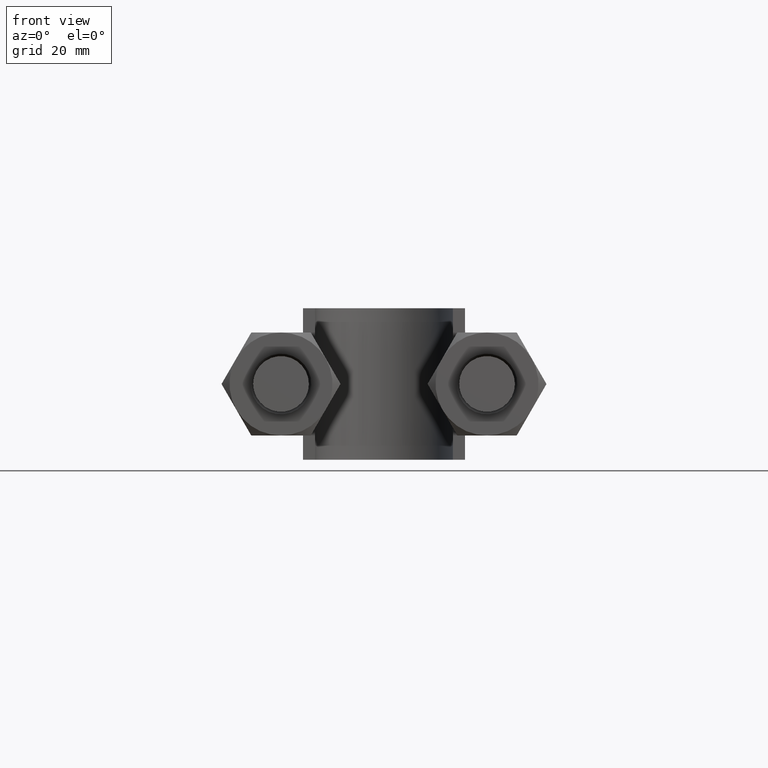
[diagram: clean part render]
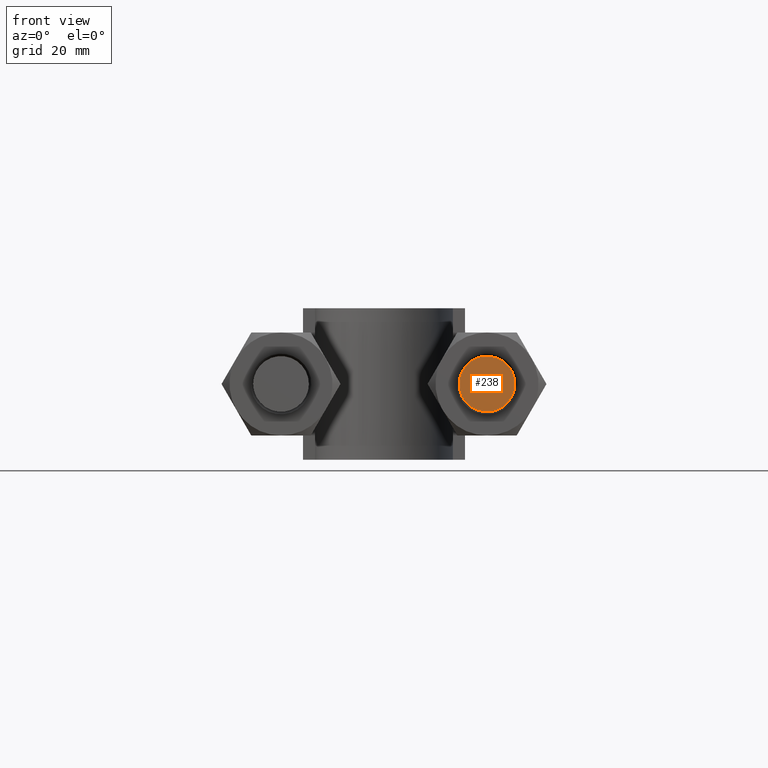
[diagram: same view with one face highlighted and labeled with its STEP entity id]
A machine part, front view. The second image highlights one B-rep face of the part: STEP entity #238.
In plain terms, the highlighted planar face has unit normal (-0, -1, 0).
Its self-contained STEP definition (entity closure, byte-faithful):
#238 = ADVANCED_FACE( '', ( #344 ), #345, .T. );
#344 = FACE_OUTER_BOUND( '', #1423, .T. );
#345 = PLANE( '', #1424 );
#1423 = EDGE_LOOP( '', ( #1687 ) );
#1424 = AXIS2_PLACEMENT_3D( '', #1688, #1689, #1690 );
#1687 = ORIENTED_EDGE( '', *, *, #2134, .T. );
#1688 = CARTESIAN_POINT( '', ( 17.0000000000000, -4.16366160299608E-015, -1.40829730689573E-016 ) );
#1689 = DIRECTION( '', ( -2.44921270764475E-016, -1.00000000000000, 3.06151588455594E-016 ) );
#1690 = DIRECTION( '', ( 1.00000000000000, -2.44921270764475E-016, -1.09476442525376E-047 ) );
#2134 = EDGE_CURVE( '', #2315, #2315, #2316, .T. );
#2315 = VERTEX_POINT( '', #2763 );
#2316 = CIRCLE( '', #2764, 4.60000000000000 );
#2763 = CARTESIAN_POINT( '', ( 21.6000000000000, -5.29029944851267E-015, -1.40829730689573E-016 ) );
#2764 = AXIS2_PLACEMENT_3D( '', #3172, #3173, #3174 );
#3172 = CARTESIAN_POINT( '', ( 17.0000000000000, -4.16366160299608E-015, -1.40829730689573E-016 ) );
#3173 = DIRECTION( '', ( -2.44921270764475E-016, -1.00000000000000, 3.06151588455594E-016 ) );
#3174 = DIRECTION( '', ( 1.00000000000000, -2.44921270764475E-016, -1.09476442525376E-047 ) );